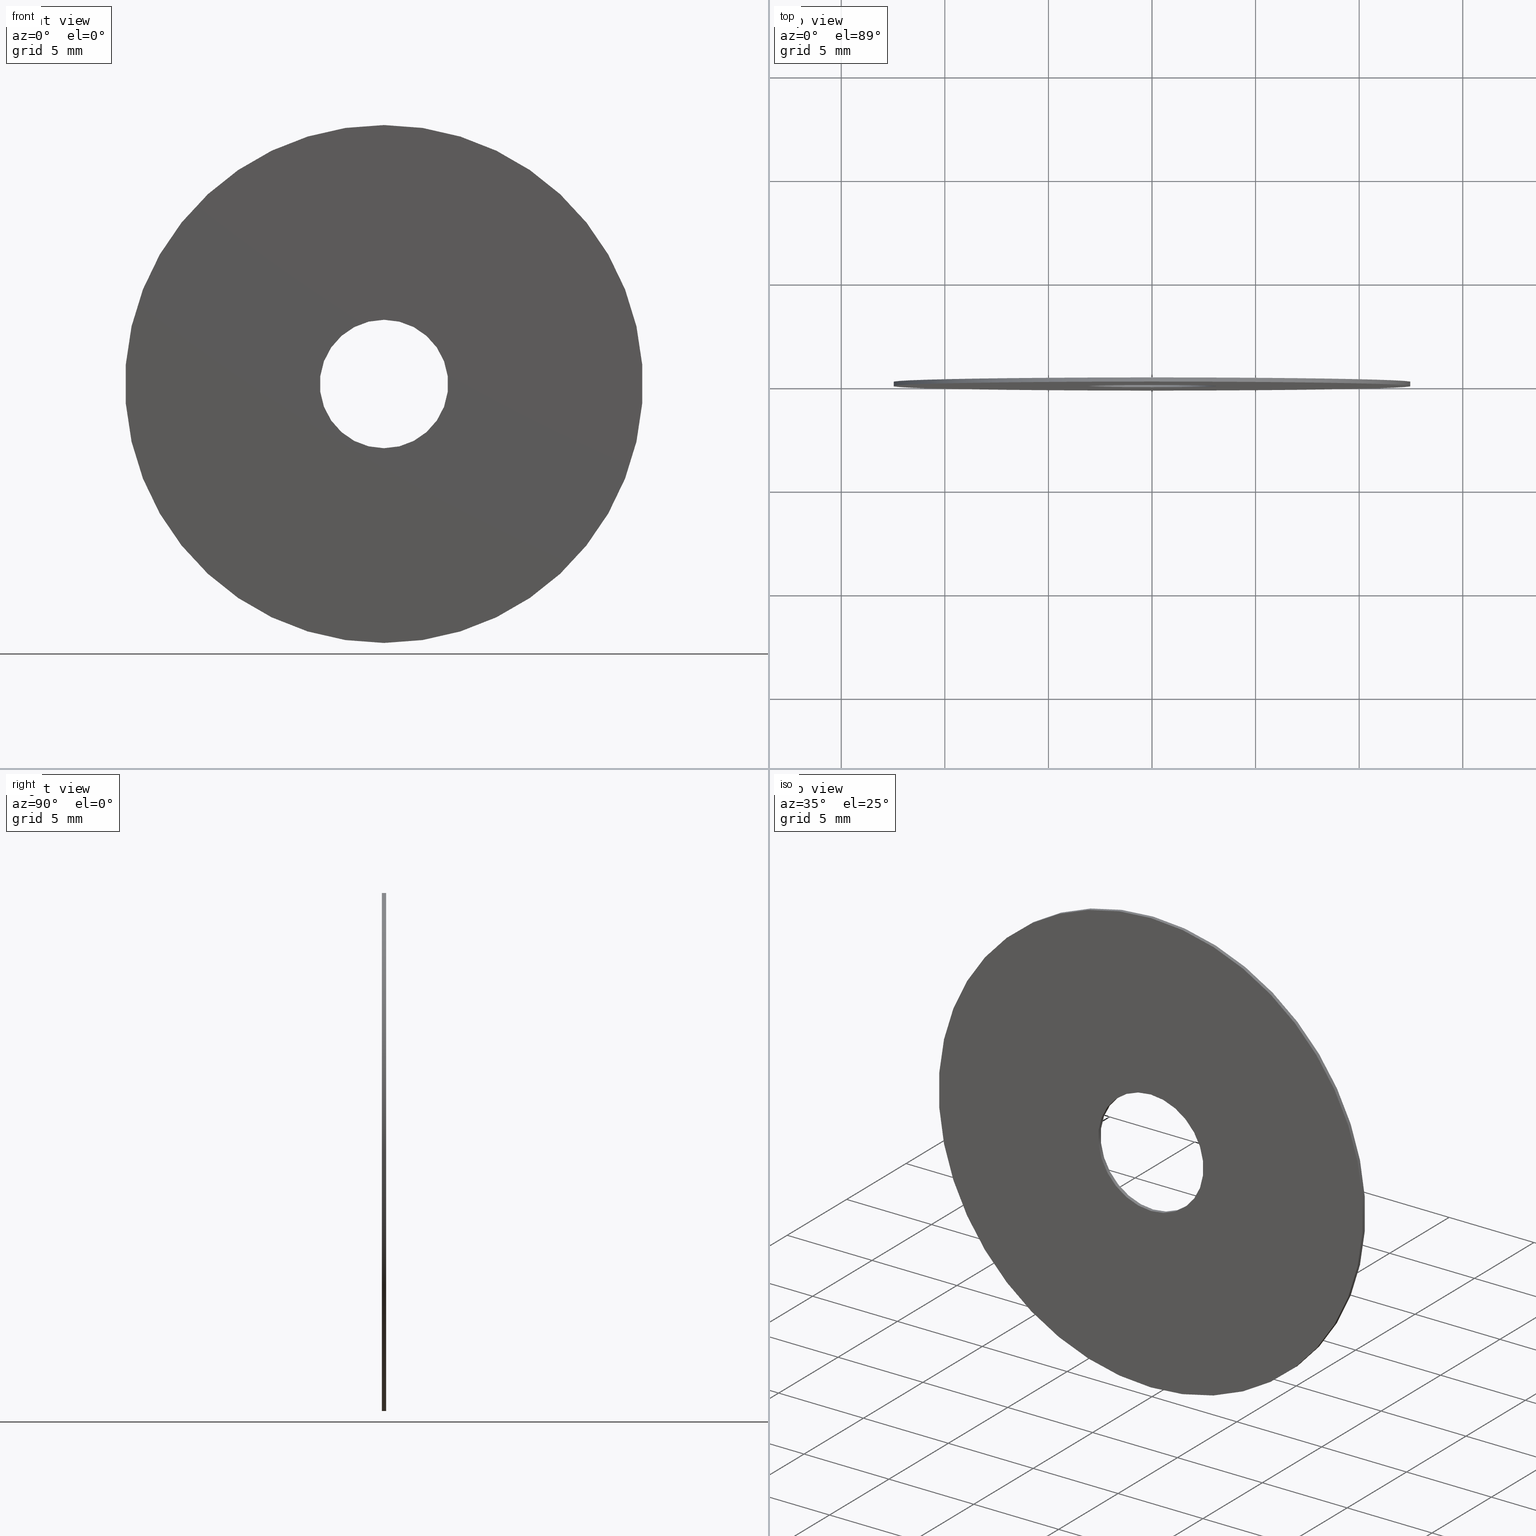
[diagram: canonical four-view strip — front | top / right | iso, engineering-drawing reading convention]
A machine part, canonical four-view strip (front | top / right | iso — engineering-drawing reading convention). The complete STEP part file that produces these views, byte-faithful:
ISO-10303-21;
HEADER;
FILE_DESCRIPTION (( 'STEP AP203' ),
    '1' );
FILE_NAME ('1.4.2.129-ZGH-25-DK0.2.STEP',
    '2024-04-06T05:15:31',
    ( '' ),
    ( '' ),
    'SwSTEP 2.0',
    'SolidWorks 2021',
    '' );
FILE_SCHEMA (( 'CONFIG_CONTROL_DESIGN' ));
ENDSEC;

DATA;
#1 = LINE ( 'NONE', #58, #69 ) ;
#2 = LOCAL_TIME ( 13, 15, 31.00000000000000000, #87 ) ;
#3 = EDGE_CURVE ( 'NONE', #107, #156, #49, .T. ) ;
#4 = MECHANICAL_CONTEXT ( 'NONE', #230, 'mechanical' ) ;
#5 = CARTESIAN_POINT ( 'NONE',  ( 0.000000000000000000, 0.1000000000000000056, 0.000000000000000000 ) ) ;
#6 = ADVANCED_BREP_SHAPE_REPRESENTATION ( '1.4.2.129-ZGH-25-DK0.2', ( #216, #23 ), #160 ) ;
#7 = APPROVAL_ROLE ( '' ) ;
#8 = ORIENTED_EDGE ( 'NONE', *, *, #3, .T. ) ;
#9 = APPROVAL_ROLE ( '' ) ;
#10 = DATE_AND_TIME ( #86, #234 ) ;
#11 = CALENDAR_DATE ( 2024, 6, 4 ) ;
#12 = VERTEX_POINT ( 'NONE', #141 ) ;
#13 = CARTESIAN_POINT ( 'NONE',  ( 0.000000000000000000, -0.1000000000000000056, -12.50000000000000000 ) ) ;
#14 = VECTOR ( 'NONE', #124, 1000.000000000000000 ) ;
#15 = DIRECTION ( 'NONE',  ( 0.000000000000000000, 1.000000000000000000, 0.000000000000000000 ) ) ;
#16 = LINE ( 'NONE', #210, #143 ) ;
#17 = ORIENTED_EDGE ( 'NONE', *, *, #21, .T. ) ;
#18 = CARTESIAN_POINT ( 'NONE',  ( 0.000000000000000000, -0.1000000000000000056, 0.000000000000000000 ) ) ;
#19 = APPROVAL_STATUS ( 'not_yet_approved' ) ;
#20 =( NAMED_UNIT ( * ) PLANE_ANGLE_UNIT ( ) SI_UNIT ( $, .RADIAN. ) );
#21 = EDGE_CURVE ( 'NONE', #65, #89, #219, .T. ) ;
#22 = DIRECTION ( 'NONE',  ( 0.000000000000000000, 0.000000000000000000, 1.000000000000000000 ) ) ;
#23 = AXIS2_PLACEMENT_3D ( 'NONE', #214, #39, #79 ) ;
#24 = CARTESIAN_POINT ( 'NONE',  ( 0.000000000000000000, -0.1000000000000000056, 3.100000000000000089 ) ) ;
#25 = LINE ( 'NONE', #24, #42 ) ;
#26 = APPROVAL_DATE_TIME ( #151, #149 ) ;
#27 = CC_DESIGN_SECURITY_CLASSIFICATION ( #123, ( #207 ) ) ;
#28 = ADVANCED_FACE ( 'NONE', ( #51 ), #138, .T. ) ;
#29 = CIRCLE ( 'NONE', #182, 3.100000000000000089 ) ;
#30 = COORDINATED_UNIVERSAL_TIME_OFFSET ( 8, 0, .AHEAD. ) ;
#31 = ORIENTED_EDGE ( 'NONE', *, *, #44, .F. ) ;
#32 = CARTESIAN_POINT ( 'NONE',  ( 0.000000000000000000, 0.1000000000000000056, 0.000000000000000000 ) ) ;
#33 = VERTEX_POINT ( 'NONE', #92 ) ;
#34 = DIRECTION ( 'NONE',  ( -0.000000000000000000, -1.000000000000000000, -0.000000000000000000 ) ) ;
#35 = DIRECTION ( 'NONE',  ( 0.000000000000000000, 0.000000000000000000, 1.000000000000000000 ) ) ;
#36 = CARTESIAN_POINT ( 'NONE',  ( 3.796405077356794918E-16, 0.1000000000000000056, -3.100000000000000089 ) ) ;
#37 = ORGANIZATION ( 'δָ��', 'δָ��', '' ) ;
#38 = CARTESIAN_POINT ( 'NONE',  ( 0.000000000000000000, -0.1000000000000000056, 0.000000000000000000 ) ) ;
#39 = DIRECTION ( 'NONE',  ( 0.000000000000000000, 0.000000000000000000, 1.000000000000000000 ) ) ;
#40 = PLANE ( 'NONE',  #60 ) ;
#41 = DIRECTION ( 'NONE',  ( 0.000000000000000000, 1.000000000000000000, 0.000000000000000000 ) ) ;
#42 = VECTOR ( 'NONE', #100, 1000.000000000000000 ) ;
#43 = ORIENTED_EDGE ( 'NONE', *, *, #63, .T. ) ;
#44 = EDGE_CURVE ( 'NONE', #107, #65, #16, .T. ) ;
#45 = PERSON_AND_ORGANIZATION ( #116, #37 ) ;
#46 = ORIENTED_EDGE ( 'NONE', *, *, #135, .F. ) ;
#47 = COORDINATED_UNIVERSAL_TIME_OFFSET ( 8, 0, .AHEAD. ) ;
#48 = DATE_TIME_ROLE ( 'classification_date' ) ;
#49 = CIRCLE ( 'NONE', #104, 3.100000000000000089 ) ;
#50 = CARTESIAN_POINT ( 'NONE',  ( 0.000000000000000000, -0.1000000000000000056, 0.000000000000000000 ) ) ;
#51 = FACE_OUTER_BOUND ( 'NONE', #190, .T. ) ;
#52 = ORIENTED_EDGE ( 'NONE', *, *, #243, .F. ) ;
#53 = ORIENTED_EDGE ( 'NONE', *, *, #225, .T. ) ;
#54 = PERSON_AND_ORGANIZATION_ROLE ( 'design_owner' ) ;
#55 = AXIS2_PLACEMENT_3D ( 'NONE', #32, #248, #35 ) ;
#56 = CYLINDRICAL_SURFACE ( 'NONE', #93, 3.100000000000000089 ) ;
#57 = ADVANCED_FACE ( 'NONE', ( #206 ), #74, .F. ) ;
#58 = CARTESIAN_POINT ( 'NONE',  ( 1.530808498934191521E-15, 0.1000000000000000056, 12.50000000000000000 ) ) ;
#59 =( LENGTH_UNIT ( ) NAMED_UNIT ( * ) SI_UNIT ( .MILLI., .METRE. ) );
#60 = AXIS2_PLACEMENT_3D ( 'NONE', #38, #233, #76 ) ;
#61 = DESIGN_CONTEXT ( 'detailed design', #80, 'design' ) ;
#62 = COORDINATED_UNIVERSAL_TIME_OFFSET ( 8, 0, .AHEAD. ) ;
#63 = EDGE_CURVE ( 'NONE', #89, #65, #64, .T. ) ;
#64 = CIRCLE ( 'NONE', #126, 3.100000000000000089 ) ;
#65 = VERTEX_POINT ( 'NONE', #36 ) ;
#66 = PRODUCT_RELATED_PRODUCT_CATEGORY ( 'detail', '', ( #67 ) ) ;
#67 = PRODUCT ( '1.4.2.129-ZGH-25-DK0.2', '1.4.2.129-ZGH-25-DK0.2', '', ( #4 ) ) ;
#68 = PERSON_AND_ORGANIZATION ( #116, #37 ) ;
#69 = VECTOR ( 'NONE', #213, 1000.000000000000000 ) ;
#70 = CYLINDRICAL_SURFACE ( 'NONE', #176, 12.50000000000000000 ) ;
#71 = ORIENTED_EDGE ( 'NONE', *, *, #21, .F. ) ;
#72 = EDGE_CURVE ( 'NONE', #130, #33, #117, .T. ) ;
#73 = DIRECTION ( 'NONE',  ( 0.000000000000000000, 1.000000000000000000, 0.000000000000000000 ) ) ;
#74 = CYLINDRICAL_SURFACE ( 'NONE', #133, 3.100000000000000089 ) ;
#75 = EDGE_LOOP ( 'NONE', ( #173, #171 ) ) ;
#76 = DIRECTION ( 'NONE',  ( 0.000000000000000000, -0.000000000000000000, 1.000000000000000000 ) ) ;
#77 = CLOSED_SHELL ( 'NONE', ( #198, #28, #121, #166, #145, #57 ) ) ;
#78 = APPLICATION_PROTOCOL_DEFINITION ( 'international standard', 'config_control_design', 1994, #230 ) ;
#79 = DIRECTION ( 'NONE',  ( 1.000000000000000000, 0.000000000000000000, 0.000000000000000000 ) ) ;
#80 = APPLICATION_CONTEXT ( 'configuration controlled 3d designs of mechanical parts and assemblies' ) ;
#81 = APPROVAL_STATUS ( 'not_yet_approved' ) ;
#82 = APPROVAL_DATE_TIME ( #163, #228 ) ;
#83 = CC_DESIGN_PERSON_AND_ORGANIZATION_ASSIGNMENT ( #106, #185, ( #123 ) ) ;
#84 = AXIS2_PLACEMENT_3D ( 'NONE', #181, #179, #119 ) ;
#85 = CC_DESIGN_APPROVAL ( #228, ( #207 ) ) ;
#86 = CALENDAR_DATE ( 2024, 6, 4 ) ;
#87 = COORDINATED_UNIVERSAL_TIME_OFFSET ( 8, 0, .AHEAD. ) ;
#88 = DIRECTION ( 'NONE',  ( -0.000000000000000000, -1.000000000000000000, -0.000000000000000000 ) ) ;
#89 = VERTEX_POINT ( 'NONE', #94 ) ;
#90 = EDGE_CURVE ( 'NONE', #240, #12, #122, .T. ) ;
#91 = EDGE_LOOP ( 'NONE', ( #52, #164, #154, #128 ) ) ;
#92 = CARTESIAN_POINT ( 'NONE',  ( 1.530808498934191521E-15, -0.1000000000000000056, 12.50000000000000000 ) ) ;
#93 = AXIS2_PLACEMENT_3D ( 'NONE', #180, #197, #178 ) ;
#94 = CARTESIAN_POINT ( 'NONE',  ( 0.000000000000000000, 0.1000000000000000056, 3.100000000000000089 ) ) ;
#95 = CARTESIAN_POINT ( 'NONE',  ( 0.000000000000000000, 0.1000000000000000056, -12.50000000000000000 ) ) ;
#96 =( NAMED_UNIT ( * ) SI_UNIT ( $, .STERADIAN. ) SOLID_ANGLE_UNIT ( ) );
#97 = APPROVAL_PERSON_ORGANIZATION ( #132, #228, #9 ) ;
#98 = LOCAL_TIME ( 13, 15, 31.00000000000000000, #30 ) ;
#99 = FACE_BOUND ( 'NONE', #174, .T. ) ;
#100 = DIRECTION ( 'NONE',  ( -0.000000000000000000, 1.000000000000000000, -0.000000000000000000 ) ) ;
#101 = LOCAL_TIME ( 13, 15, 31.00000000000000000, #47 ) ;
#102 = DATE_AND_TIME ( #165, #98 ) ;
#103 = ORIENTED_EDGE ( 'NONE', *, *, #109, .F. ) ;
#104 = AXIS2_PLACEMENT_3D ( 'NONE', #50, #153, #244 ) ;
#105 = APPROVAL ( #81, 'δָ��' ) ;
#106 = PERSON_AND_ORGANIZATION ( #116, #37 ) ;
#107 = VERTEX_POINT ( 'NONE', #136 ) ;
#108 = FACE_OUTER_BOUND ( 'NONE', #91, .T. ) ;
#109 = EDGE_CURVE ( 'NONE', #156, #107, #29, .T. ) ;
#110 = ORIENTED_EDGE ( 'NONE', *, *, #44, .T. ) ;
#111 = CIRCLE ( 'NONE', #84, 12.50000000000000000 ) ;
#112 = DIRECTION ( 'NONE',  ( 0.000000000000000000, 0.000000000000000000, -1.000000000000000000 ) ) ;
#113 = CC_DESIGN_DATE_AND_TIME_ASSIGNMENT ( #150, #48, ( #123 ) ) ;
#114 = EDGE_LOOP ( 'NONE', ( #183, #187 ) ) ;
#115 = ORIENTED_EDGE ( 'NONE', *, *, #63, .F. ) ;
#116 = PERSON ( 'δָ��', 'δָ��', 'δָ��', ('δָ��'), ('δָ��'), ('δָ��') ) ;
#117 = CIRCLE ( 'NONE', #167, 12.50000000000000000 ) ;
#118 = FACE_BOUND ( 'NONE', #169, .T. ) ;
#119 = DIRECTION ( 'NONE',  ( 0.000000000000000000, 0.000000000000000000, 1.000000000000000000 ) ) ;
#120 = FACE_OUTER_BOUND ( 'NONE', #114, .T. ) ;
#121 = ADVANCED_FACE ( 'NONE', ( #108 ), #70, .T. ) ;
#122 = CIRCLE ( 'NONE', #55, 12.50000000000000000 ) ;
#123 = SECURITY_CLASSIFICATION ( '', '', #204 ) ;
#124 = DIRECTION ( 'NONE',  ( -0.000000000000000000, -1.000000000000000000, -0.000000000000000000 ) ) ;
#125 = LINE ( 'NONE', #146, #14 ) ;
#126 = AXIS2_PLACEMENT_3D ( 'NONE', #191, #73, #175 ) ;
#127 = PERSON_AND_ORGANIZATION_ROLE ( 'creator' ) ;
#128 = ORIENTED_EDGE ( 'NONE', *, *, #72, .T. ) ;
#129 = APPROVAL_ROLE ( '' ) ;
#130 = VERTEX_POINT ( 'NONE', #13 ) ;
#131 = APPROVAL_STATUS ( 'not_yet_approved' ) ;
#132 = PERSON_AND_ORGANIZATION ( #116, #37 ) ;
#133 = AXIS2_PLACEMENT_3D ( 'NONE', #18, #231, #245 ) ;
#134 = DIRECTION ( 'NONE',  ( 0.000000000000000000, 1.000000000000000000, 0.000000000000000000 ) ) ;
#135 = EDGE_CURVE ( 'NONE', #240, #130, #125, .T. ) ;
#136 = CARTESIAN_POINT ( 'NONE',  ( 3.796405077356794918E-16, -0.1000000000000000056, -3.100000000000000089 ) ) ;
#137 = CC_DESIGN_PERSON_AND_ORGANIZATION_ASSIGNMENT ( #148, #237, ( #207 ) ) ;
#138 = CYLINDRICAL_SURFACE ( 'NONE', #246, 12.50000000000000000 ) ;
#139 = AXIS2_PLACEMENT_3D ( 'NONE', #159, #41, #22 ) ;
#140 = DIRECTION ( 'NONE',  ( 0.000000000000000000, 1.000000000000000000, 0.000000000000000000 ) ) ;
#141 = CARTESIAN_POINT ( 'NONE',  ( 1.530808498934191521E-15, 0.1000000000000000056, 12.50000000000000000 ) ) ;
#142 = APPLICATION_PROTOCOL_DEFINITION ( 'international standard', 'config_control_design', 1994, #80 ) ;
#143 = VECTOR ( 'NONE', #155, 1000.000000000000000 ) ;
#144 = DIRECTION ( 'NONE',  ( 0.000000000000000000, -0.000000000000000000, 1.000000000000000000 ) ) ;
#145 = ADVANCED_FACE ( 'NONE', ( #99, #120 ), #40, .F. ) ;
#146 = CARTESIAN_POINT ( 'NONE',  ( 0.000000000000000000, 0.1000000000000000056, -12.50000000000000000 ) ) ;
#147 = FACE_OUTER_BOUND ( 'NONE', #75, .T. ) ;
#148 = PERSON_AND_ORGANIZATION ( #116, #37 ) ;
#149 = APPROVAL ( #19, 'δָ��' ) ;
#150 = DATE_AND_TIME ( #11, #2 ) ;
#151 = DATE_AND_TIME ( #186, #101 ) ;
#152 = ORIENTED_EDGE ( 'NONE', *, *, #249, .T. ) ;
#153 = DIRECTION ( 'NONE',  ( 0.000000000000000000, 1.000000000000000000, 0.000000000000000000 ) ) ;
#154 = ORIENTED_EDGE ( 'NONE', *, *, #135, .T. ) ;
#155 = DIRECTION ( 'NONE',  ( -0.000000000000000000, 1.000000000000000000, -0.000000000000000000 ) ) ;
#156 = VERTEX_POINT ( 'NONE', #199 ) ;
#157 = PRODUCT_DEFINITION ( 'δ֪', '', #207, #61 ) ;
#158 = DIRECTION ( 'NONE',  ( 0.000000000000000000, 1.000000000000000000, 0.000000000000000000 ) ) ;
#159 = CARTESIAN_POINT ( 'NONE',  ( 0.000000000000000000, 0.1000000000000000056, 0.000000000000000000 ) ) ;
#160 =( GEOMETRIC_REPRESENTATION_CONTEXT ( 3 ) GLOBAL_UNCERTAINTY_ASSIGNED_CONTEXT ( ( #161 ) ) GLOBAL_UNIT_ASSIGNED_CONTEXT ( ( #59, #20, #96 ) ) REPRESENTATION_CONTEXT ( 'NONE', 'WORKASPACE' ) );
#161 = UNCERTAINTY_MEASURE_WITH_UNIT (LENGTH_MEASURE( 1.000000000000000082E-05 ), #59, 'distance_accuracy_value', 'NONE');
#162 = CC_DESIGN_PERSON_AND_ORGANIZATION_ASSIGNMENT ( #217, #54, ( #67 ) ) ;
#163 = DATE_AND_TIME ( #184, #241 ) ;
#164 = ORIENTED_EDGE ( 'NONE', *, *, #90, .F. ) ;
#165 = CALENDAR_DATE ( 2024, 6, 4 ) ;
#166 = ADVANCED_FACE ( 'NONE', ( #118, #147 ), #215, .T. ) ;
#167 = AXIS2_PLACEMENT_3D ( 'NONE', #177, #140, #209 ) ;
#168 = PRODUCT_DEFINITION_SHAPE ( 'NONE', 'NONE',  #157 ) ;
#169 = EDGE_LOOP ( 'NONE', ( #115, #71 ) ) ;
#170 = CC_DESIGN_APPROVAL ( #149, ( #157 ) ) ;
#171 = ORIENTED_EDGE ( 'NONE', *, *, #235, .T. ) ;
#172 = CC_DESIGN_PERSON_AND_ORGANIZATION_ASSIGNMENT ( #68, #239, ( #207 ) ) ;
#173 = ORIENTED_EDGE ( 'NONE', *, *, #90, .T. ) ;
#174 = EDGE_LOOP ( 'NONE', ( #189, #8 ) ) ;
#175 = DIRECTION ( 'NONE',  ( 0.000000000000000000, 0.000000000000000000, 1.000000000000000000 ) ) ;
#176 = AXIS2_PLACEMENT_3D ( 'NONE', #224, #88, #188 ) ;
#177 = CARTESIAN_POINT ( 'NONE',  ( 0.000000000000000000, -0.1000000000000000056, 0.000000000000000000 ) ) ;
#178 = DIRECTION ( 'NONE',  ( 0.000000000000000000, 0.000000000000000000, 1.000000000000000000 ) ) ;
#179 = DIRECTION ( 'NONE',  ( 0.000000000000000000, 1.000000000000000000, 0.000000000000000000 ) ) ;
#180 = CARTESIAN_POINT ( 'NONE',  ( 0.000000000000000000, -0.1000000000000000056, 0.000000000000000000 ) ) ;
#181 = CARTESIAN_POINT ( 'NONE',  ( 0.000000000000000000, -0.1000000000000000056, 0.000000000000000000 ) ) ;
#182 = AXIS2_PLACEMENT_3D ( 'NONE', #232, #134, #205 ) ;
#183 = ORIENTED_EDGE ( 'NONE', *, *, #72, .F. ) ;
#184 = CALENDAR_DATE ( 2024, 6, 4 ) ;
#185 = PERSON_AND_ORGANIZATION_ROLE ( 'classification_officer' ) ;
#186 = CALENDAR_DATE ( 2024, 6, 4 ) ;
#187 = ORIENTED_EDGE ( 'NONE', *, *, #249, .F. ) ;
#188 = DIRECTION ( 'NONE',  ( 0.000000000000000000, 0.000000000000000000, -1.000000000000000000 ) ) ;
#189 = ORIENTED_EDGE ( 'NONE', *, *, #109, .T. ) ;
#190 = EDGE_LOOP ( 'NONE', ( #201, #238, #152, #46 ) ) ;
#191 = CARTESIAN_POINT ( 'NONE',  ( 0.000000000000000000, 0.1000000000000000056, 0.000000000000000000 ) ) ;
#192 = ORIENTED_EDGE ( 'NONE', *, *, #3, .F. ) ;
#193 = AXIS2_PLACEMENT_3D ( 'NONE', #5, #158, #144 ) ;
#194 = CC_DESIGN_APPROVAL ( #105, ( #123 ) ) ;
#195 = PERSON_AND_ORGANIZATION ( #116, #37 ) ;
#196 = APPROVAL_PERSON_ORGANIZATION ( #45, #105, #7 ) ;
#197 = DIRECTION ( 'NONE',  ( -0.000000000000000000, 1.000000000000000000, -0.000000000000000000 ) ) ;
#198 = ADVANCED_FACE ( 'NONE', ( #236 ), #56, .F. ) ;
#199 = CARTESIAN_POINT ( 'NONE',  ( 0.000000000000000000, -0.1000000000000000056, 3.100000000000000089 ) ) ;
#200 = EDGE_LOOP ( 'NONE', ( #192, #110, #17, #242 ) ) ;
#201 = ORIENTED_EDGE ( 'NONE', *, *, #235, .F. ) ;
#202 = DATE_TIME_ROLE ( 'creation_date' ) ;
#203 = SHAPE_DEFINITION_REPRESENTATION ( #168, #6 ) ;
#204 = SECURITY_CLASSIFICATION_LEVEL ( 'unclassified' ) ;
#205 = DIRECTION ( 'NONE',  ( 0.000000000000000000, 0.000000000000000000, 1.000000000000000000 ) ) ;
#206 = FACE_OUTER_BOUND ( 'NONE', #247, .T. ) ;
#207 = PRODUCT_DEFINITION_FORMATION_WITH_SPECIFIED_SOURCE ( '�κ�', '', #67, .NOT_KNOWN. ) ;
#208 = CARTESIAN_POINT ( 'NONE',  ( 0.000000000000000000, 0.1000000000000000056, 0.000000000000000000 ) ) ;
#209 = DIRECTION ( 'NONE',  ( 0.000000000000000000, 0.000000000000000000, 1.000000000000000000 ) ) ;
#210 = CARTESIAN_POINT ( 'NONE',  ( 3.796405077356794918E-16, -0.1000000000000000056, -3.100000000000000089 ) ) ;
#211 = APPROVAL_PERSON_ORGANIZATION ( #195, #149, #129 ) ;
#212 = CC_DESIGN_DATE_AND_TIME_ASSIGNMENT ( #10, #202, ( #157 ) ) ;
#213 = DIRECTION ( 'NONE',  ( -0.000000000000000000, -1.000000000000000000, -0.000000000000000000 ) ) ;
#214 = CARTESIAN_POINT ( 'NONE',  ( 0.000000000000000000, 0.000000000000000000, 0.000000000000000000 ) ) ;
#215 = PLANE ( 'NONE',  #193 ) ;
#216 = MANIFOLD_SOLID_BREP ( '�г�-����3', #77 ) ;
#217 = PERSON_AND_ORGANIZATION ( #116, #37 ) ;
#218 = APPROVAL_DATE_TIME ( #102, #105 ) ;
#219 = CIRCLE ( 'NONE', #223, 3.100000000000000089 ) ;
#220 = CC_DESIGN_PERSON_AND_ORGANIZATION_ASSIGNMENT ( #221, #127, ( #157 ) ) ;
#221 = PERSON_AND_ORGANIZATION ( #116, #37 ) ;
#222 = COORDINATED_UNIVERSAL_TIME_OFFSET ( 8, 0, .AHEAD. ) ;
#223 = AXIS2_PLACEMENT_3D ( 'NONE', #229, #15, #226 ) ;
#224 = CARTESIAN_POINT ( 'NONE',  ( 0.000000000000000000, 0.1000000000000000056, 0.000000000000000000 ) ) ;
#225 = EDGE_CURVE ( 'NONE', #156, #89, #25, .T. ) ;
#226 = DIRECTION ( 'NONE',  ( 0.000000000000000000, 0.000000000000000000, 1.000000000000000000 ) ) ;
#227 = CIRCLE ( 'NONE', #139, 12.50000000000000000 ) ;
#228 = APPROVAL ( #131, 'δָ��' ) ;
#229 = CARTESIAN_POINT ( 'NONE',  ( 0.000000000000000000, 0.1000000000000000056, 0.000000000000000000 ) ) ;
#230 = APPLICATION_CONTEXT ( 'configuration controlled 3d designs of mechanical parts and assemblies' ) ;
#231 = DIRECTION ( 'NONE',  ( -0.000000000000000000, 1.000000000000000000, -0.000000000000000000 ) ) ;
#232 = CARTESIAN_POINT ( 'NONE',  ( 0.000000000000000000, -0.1000000000000000056, 0.000000000000000000 ) ) ;
#233 = DIRECTION ( 'NONE',  ( 0.000000000000000000, 1.000000000000000000, 0.000000000000000000 ) ) ;
#234 = LOCAL_TIME ( 13, 15, 31.00000000000000000, #222 ) ;
#235 = EDGE_CURVE ( 'NONE', #12, #240, #227, .T. ) ;
#236 = FACE_OUTER_BOUND ( 'NONE', #200, .T. ) ;
#237 = PERSON_AND_ORGANIZATION_ROLE ( 'design_supplier' ) ;
#238 = ORIENTED_EDGE ( 'NONE', *, *, #243, .T. ) ;
#239 = PERSON_AND_ORGANIZATION_ROLE ( 'creator' ) ;
#240 = VERTEX_POINT ( 'NONE', #95 ) ;
#241 = LOCAL_TIME ( 13, 15, 31.00000000000000000, #62 ) ;
#242 = ORIENTED_EDGE ( 'NONE', *, *, #225, .F. ) ;
#243 = EDGE_CURVE ( 'NONE', #12, #33, #1, .T. ) ;
#244 = DIRECTION ( 'NONE',  ( 0.000000000000000000, 0.000000000000000000, 1.000000000000000000 ) ) ;
#245 = DIRECTION ( 'NONE',  ( 0.000000000000000000, 0.000000000000000000, 1.000000000000000000 ) ) ;
#246 = AXIS2_PLACEMENT_3D ( 'NONE', #208, #34, #112 ) ;
#247 = EDGE_LOOP ( 'NONE', ( #31, #103, #53, #43 ) ) ;
#248 = DIRECTION ( 'NONE',  ( 0.000000000000000000, 1.000000000000000000, 0.000000000000000000 ) ) ;
#249 = EDGE_CURVE ( 'NONE', #33, #130, #111, .T. ) ;
ENDSEC;
END-ISO-10303-21;
